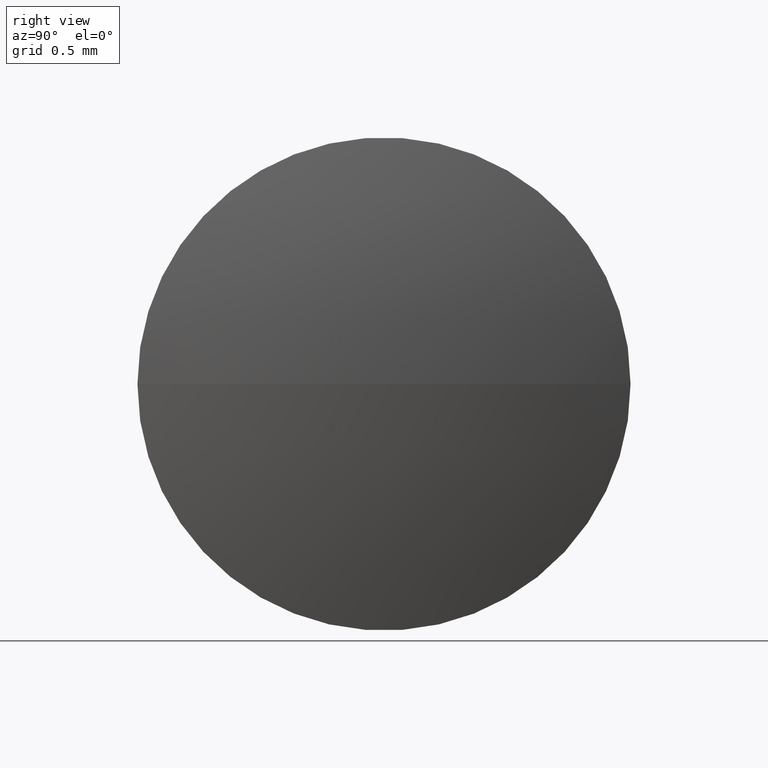
[diagram: clean part render]
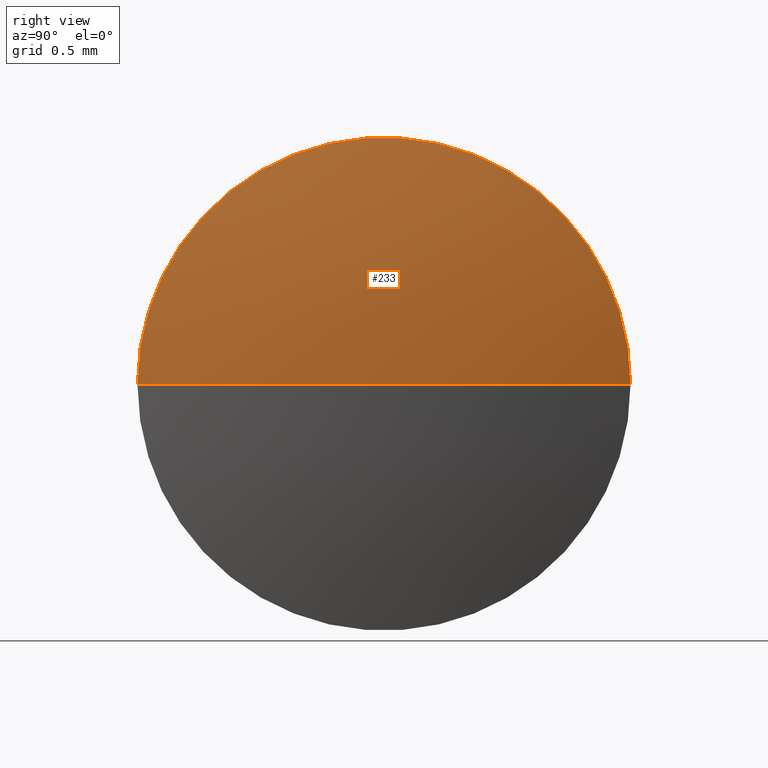
[diagram: same view with one face highlighted and labeled with its STEP entity id]
A machine part, right view. The second image highlights one B-rep face of the part: STEP entity #233.
In plain terms, the highlighted spherical surface has radius 6.3433 mm.
Its self-contained STEP definition (entity closure, byte-faithful):
#18 = ORIENTED_EDGE ( 'NONE', *, *, #73, .T. ) ;
#31 = ORIENTED_EDGE ( 'NONE', *, *, #244, .F. ) ;
#37 = DIRECTION ( 'NONE',  ( 2.324536403052360400E-015, 1.000000000000000000, 0.0000000000000000000 ) ) ;
#39 = DIRECTION ( 'NONE',  ( 0.0000000000000000000, 1.000000000000000000, 1.224646799147353200E-016 ) ) ;
#43 = CARTESIAN_POINT ( 'NONE',  ( 4.548298154920867200, 5.742093405251865500, 0.0000000000000000000 ) ) ;
#49 = SPHERICAL_SURFACE ( 'NONE', #256, 6.343264629644402000 ) ;
#53 = VERTEX_POINT ( 'NONE', #235 ) ;
#64 = DIRECTION ( 'NONE',  ( -2.312951417694965000E-015, -1.000000000000000000, 0.0000000000000000000 ) ) ;
#73 = EDGE_CURVE ( 'NONE', #191, #290, #131, .T. ) ;
#86 = DIRECTION ( 'NONE',  ( 0.0000000000000000000, 0.0000000000000000000, 1.000000000000000000 ) ) ;
#102 = CIRCLE ( 'NONE', #275, 1.500008571477556800 ) ;
#108 = AXIS2_PLACEMENT_3D ( 'NONE', #43, #86, #247 ) ;
#131 = CIRCLE ( 'NONE', #108, 6.343264629644402000 ) ;
#132 = DIRECTION ( 'NONE',  ( 2.842884826176247500E-031, 1.224646799147353200E-016, -1.000000000000000000 ) ) ;
#152 = CARTESIAN_POINT ( 'NONE',  ( 10.71165604224102100, 5.742093405251859300, 0.0000000000000000000 ) ) ;
#172 = CARTESIAN_POINT ( 'NONE',  ( 10.89156278456526800, 5.742093405251850400, 0.0000000000000000000 ) ) ;
#191 = VERTEX_POINT ( 'NONE', #172 ) ;
#194 = DIRECTION ( 'NONE',  ( -1.000000000000000000, 2.321391627492575400E-015, -0.0000000000000000000 ) ) ;
#212 = ORIENTED_EDGE ( 'NONE', *, *, #255, .F. ) ;
#218 = FACE_OUTER_BOUND ( 'NONE', #267, .T. ) ;
#222 = CIRCLE ( 'NONE', #228, 6.343264629644402000 ) ;
#228 = AXIS2_PLACEMENT_3D ( 'NONE', #289, #132, #39 ) ;
#233 = ADVANCED_FACE ( 'NONE', ( #218 ), #49, .T. ) ;
#235 = CARTESIAN_POINT ( 'NONE',  ( 10.71165604224101700, 4.242084833774289800, -1.836980695753588200E-016 ) ) ;
#244 = EDGE_CURVE ( 'NONE', #191, #53, #222, .T. ) ;
#245 = DIRECTION ( 'NONE',  ( 0.0000000000000000000, 0.0000000000000000000, -1.000000000000000000 ) ) ;
#247 = DIRECTION ( 'NONE',  ( 1.000000000000000000, 0.0000000000000000000, 0.0000000000000000000 ) ) ;
#255 = EDGE_CURVE ( 'NONE', #53, #290, #102, .T. ) ;
#256 = AXIS2_PLACEMENT_3D ( 'NONE', #292, #245, #37 ) ;
#267 = EDGE_LOOP ( 'NONE', ( #31, #18, #212 ) ) ;
#275 = AXIS2_PLACEMENT_3D ( 'NONE', #152, #194, #64 ) ;
#286 = CARTESIAN_POINT ( 'NONE',  ( 10.71165604224102300, 7.242101976729420800, 0.0000000000000000000 ) ) ;
#289 = CARTESIAN_POINT ( 'NONE',  ( 4.548298154920867200, 5.742093405251865500, 0.0000000000000000000 ) ) ;
#290 = VERTEX_POINT ( 'NONE', #286 ) ;
#292 = CARTESIAN_POINT ( 'NONE',  ( 4.548298154920867200, 5.742093405251865500, 0.0000000000000000000 ) ) ;